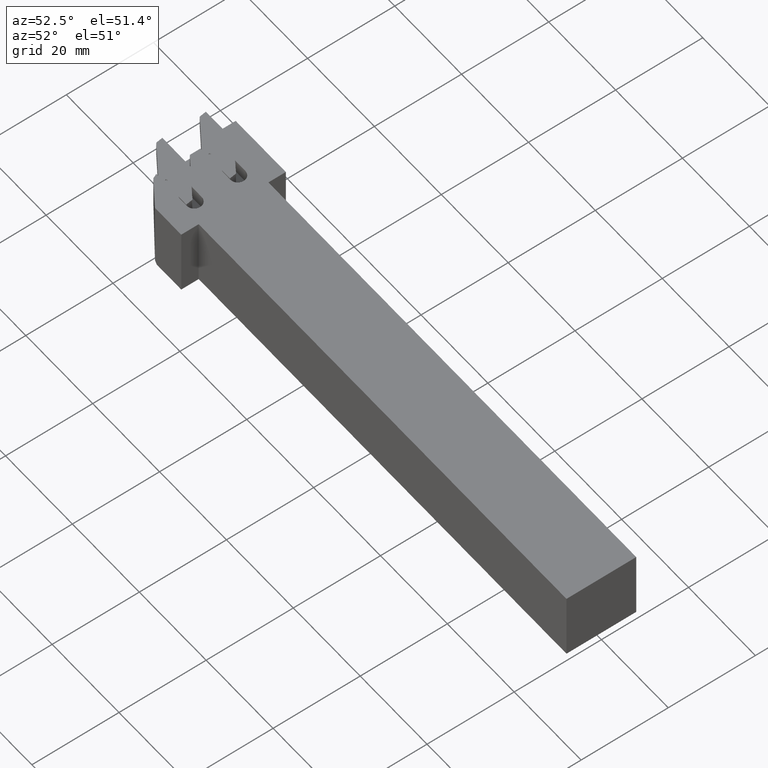
[diagram: clean part render]
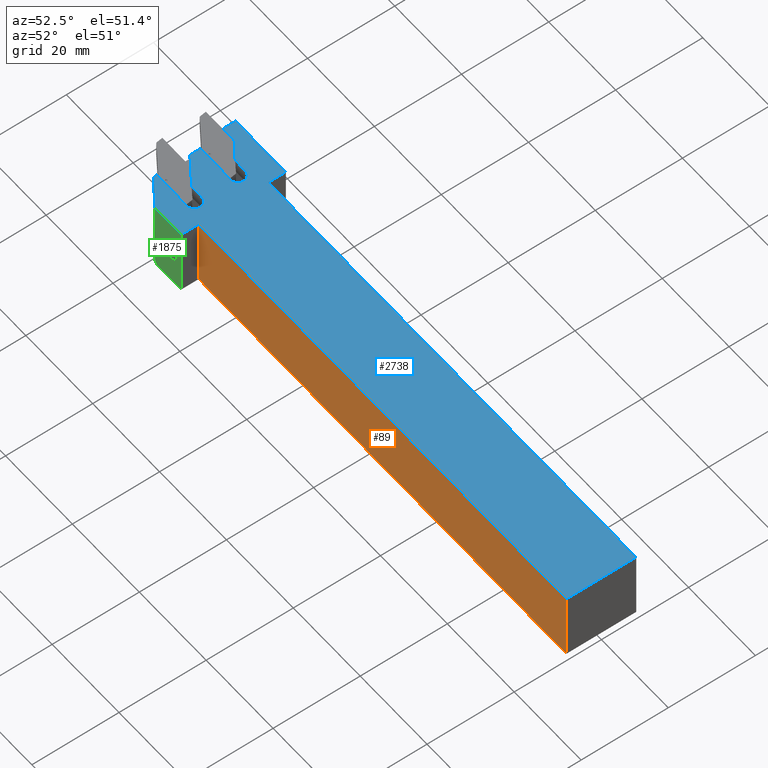
[diagram: same view with three faces highlighted in distinct colors, each labeled with its STEP entity id]
A machine part, auxiliary view with three faces highlighted in distinct colors.
Their STEP definitions:

[orange] entity #89 — the highlighted planar face has unit normal (0, -1, 0).
#89 = ADVANCED_FACE ( 'NONE', ( #137 ), #1710, .T. ) ;
#127 = CARTESIAN_POINT ( 'NONE',  ( -110.0000000000000000, -8.000000000000010700, 0.0000000000000000000 ) ) ;
#137 = FACE_OUTER_BOUND ( 'NONE', #1976, .T. ) ;
#159 = VECTOR ( 'NONE', #800, 1000.000000000000000 ) ;
#325 = AXIS2_PLACEMENT_3D ( 'NONE', #337, #1135, #2499 ) ;
#337 = CARTESIAN_POINT ( 'NONE',  ( -110.0000000000000000, -8.000000000000010700, -16.00000000000000000 ) ) ;
#409 = CARTESIAN_POINT ( 'NONE',  ( 0.0000000000000000000, -8.000000000000010700, -16.00000000000000000 ) ) ;
#461 = LINE ( 'NONE', #409, #627 ) ;
#497 = CARTESIAN_POINT ( 'NONE',  ( 0.0000000000000000000, -8.000000000000010700, -16.00000000000000000 ) ) ;
#512 = DIRECTION ( 'NONE',  ( 0.0000000000000000000, 0.0000000000000000000, 1.000000000000000000 ) ) ;
#517 = EDGE_CURVE ( 'NONE', #1944, #1025, #1358, .T. ) ;
#627 = VECTOR ( 'NONE', #512, 1000.000000000000000 ) ;
#679 = EDGE_CURVE ( 'NONE', #1774, #1944, #1722, .T. ) ;
#681 = ORIENTED_EDGE ( 'NONE', *, *, #3012, .T. ) ;
#758 = DIRECTION ( 'NONE',  ( 0.0000000000000000000, 0.0000000000000000000, 1.000000000000000000 ) ) ;
#800 = DIRECTION ( 'NONE',  ( 1.000000000000000000, 0.0000000000000000000, 0.0000000000000000000 ) ) ;
#1025 = VERTEX_POINT ( 'NONE', #2535 ) ;
#1135 = DIRECTION ( 'NONE',  ( 0.0000000000000000000, -1.000000000000000000, 0.0000000000000000000 ) ) ;
#1319 = ORIENTED_EDGE ( 'NONE', *, *, #2174, .T. ) ;
#1358 = LINE ( 'NONE', #1892, #3169 ) ;
#1485 = VERTEX_POINT ( 'NONE', #497 ) ;
#1621 = DIRECTION ( 'NONE',  ( 1.000000000000000000, 0.0000000000000000000, 0.0000000000000000000 ) ) ;
#1710 = PLANE ( 'NONE',  #325 ) ;
#1722 = LINE ( 'NONE', #2104, #1849 ) ;
#1774 = VERTEX_POINT ( 'NONE', #2778 ) ;
#1849 = VECTOR ( 'NONE', #758, 1000.000000000000000 ) ;
#1854 = ORIENTED_EDGE ( 'NONE', *, *, #679, .F. ) ;
#1892 = CARTESIAN_POINT ( 'NONE',  ( -110.0000000000000000, -8.000000000000010700, 0.0000000000000000000 ) ) ;
#1944 = VERTEX_POINT ( 'NONE', #127 ) ;
#1976 = EDGE_LOOP ( 'NONE', ( #1979, #1854, #1319, #681 ) ) ;
#1979 = ORIENTED_EDGE ( 'NONE', *, *, #517, .F. ) ;
#2104 = CARTESIAN_POINT ( 'NONE',  ( -110.0000000000000000, -8.000000000000010700, -16.00000000000000000 ) ) ;
#2174 = EDGE_CURVE ( 'NONE', #1774, #1485, #2994, .T. ) ;
#2499 = DIRECTION ( 'NONE',  ( 0.0000000000000000000, -0.0000000000000000000, -1.000000000000000000 ) ) ;
#2535 = CARTESIAN_POINT ( 'NONE',  ( 0.0000000000000000000, -8.000000000000010700, 0.0000000000000000000 ) ) ;
#2778 = CARTESIAN_POINT ( 'NONE',  ( -110.0000000000000000, -8.000000000000010700, -16.00000000000000000 ) ) ;
#2994 = LINE ( 'NONE', #3139, #159 ) ;
#3012 = EDGE_CURVE ( 'NONE', #1485, #1025, #461, .T. ) ;
#3139 = CARTESIAN_POINT ( 'NONE',  ( -110.0000000000000000, -8.000000000000010700, -16.00000000000000000 ) ) ;
#3169 = VECTOR ( 'NONE', #1621, 1000.000000000000000 ) ;

[blue] entity #2738 — the highlighted planar face has unit normal (-0, 0, 1).
#7 = EDGE_CURVE ( 'NONE', #2215, #1016, #1498, .T. ) ;
#12 = AXIS2_PLACEMENT_3D ( 'NONE', #2981, #1157, #2742 ) ;
#13 = VECTOR ( 'NONE', #3166, 1000.000000000000000 ) ;
#24 = CIRCLE ( 'NONE', #1629, 1.549999999999995800 ) ;
#38 = CARTESIAN_POINT ( 'NONE',  ( -114.6999999971994600, -3.700000000000010400, 0.0000000000000000000 ) ) ;
#68 = VERTEX_POINT ( 'NONE', #2084 ) ;
#76 = DIRECTION ( 'NONE',  ( -0.0000000000000000000, -0.0000000000000000000, -1.000000000000000000 ) ) ;
#77 = EDGE_CURVE ( 'NONE', #1025, #1535, #1593, .T. ) ;
#87 = VECTOR ( 'NONE', #2008, 1000.000000000000000 ) ;
#125 = CARTESIAN_POINT ( 'NONE',  ( -112.9999999971994500, 4.599999999999989900, 0.0000000000000000000 ) ) ;
#127 = CARTESIAN_POINT ( 'NONE',  ( -110.0000000000000000, -8.000000000000010700, 0.0000000000000000000 ) ) ;
#135 = CARTESIAN_POINT ( 'NONE',  ( -117.8272428388954000, 6.390423977855493700, 0.0000000000000000000 ) ) ;
#173 = CARTESIAN_POINT ( 'NONE',  ( -114.6999999971994600, 4.599999999999989900, 0.0000000000000000000 ) ) ;
#218 = VECTOR ( 'NONE', #2511, 1000.000000000000000 ) ;
#223 = CARTESIAN_POINT ( 'NONE',  ( -114.6999999971994600, -7.100000000000011200, 0.0000000000000000000 ) ) ;
#240 = AXIS2_PLACEMENT_3D ( 'NONE', #1661, #3203, #1410 ) ;
#270 = CARTESIAN_POINT ( 'NONE',  ( -110.0000000000000000, 7.999999999999989300, 0.0000000000000000000 ) ) ;
#276 = AXIS2_PLACEMENT_3D ( 'NONE', #972, #2564, #697 ) ;
#278 = VECTOR ( 'NONE', #3153, 1000.000000000000000 ) ;
#280 = VECTOR ( 'NONE', #1619, 1000.000000000000000 ) ;
#282 = DIRECTION ( 'NONE',  ( 1.000000000000000000, 0.0000000000000000000, 0.0000000000000000000 ) ) ;
#287 = EDGE_CURVE ( 'NONE', #1654, #2802, #1394, .T. ) ;
#299 = AXIS2_PLACEMENT_3D ( 'NONE', #173, #1790, #3341 ) ;
#304 = VECTOR ( 'NONE', #2922, 1000.000000000000000 ) ;
#335 = ORIENTED_EDGE ( 'NONE', *, *, #944, .F. ) ;
#339 = CARTESIAN_POINT ( 'NONE',  ( -110.0000000000000000, -12.00000000000001600, 0.0000000000000000000 ) ) ;
#346 = EDGE_CURVE ( 'NONE', #2933, #2520, #1430, .T. ) ;
#356 = CARTESIAN_POINT ( 'NONE',  ( -121.5541036333630600, 8.999999999999976900, 0.0000000000000000000 ) ) ;
#389 = ORIENTED_EDGE ( 'NONE', *, *, #593, .F. ) ;
#395 = CIRCLE ( 'NONE', #1539, 0.5000000000000004400 ) ;
#403 = VERTEX_POINT ( 'NONE', #223 ) ;
#421 = VERTEX_POINT ( 'NONE', #1052 ) ;
#465 = VERTEX_POINT ( 'NONE', #1018 ) ;
#482 = EDGE_CURVE ( 'NONE', #1528, #2053, #2206, .T. ) ;
#489 = CARTESIAN_POINT ( 'NONE',  ( -117.3999999971994700, 2.999999999999983600, 0.0000000000000000000 ) ) ;
#505 = EDGE_CURVE ( 'NONE', #3354, #1174, #3054, .T. ) ;
#511 = DIRECTION ( 'NONE',  ( -1.000000000000000000, -1.221440724039324500E-015, 0.0000000000000000000 ) ) ;
#517 = EDGE_CURVE ( 'NONE', #1944, #1025, #1358, .T. ) ;
#528 = EDGE_CURVE ( 'NONE', #1403, #2520, #2408, .T. ) ;
#559 = LINE ( 'NONE', #1088, #304 ) ;
#577 = CARTESIAN_POINT ( 'NONE',  ( -114.6999999971994600, 6.299999999999990100, 0.0000000000000000000 ) ) ;
#579 = DIRECTION ( 'NONE',  ( -1.000000000000000000, -1.887814473440432500E-016, -0.0000000000000000000 ) ) ;
#590 = VECTOR ( 'NONE', #819, 1000.000000000000000 ) ;
#593 = EDGE_CURVE ( 'NONE', #3339, #421, #782, .T. ) ;
#632 = DIRECTION ( 'NONE',  ( -0.8191520442889914700, 0.5735764363510464900, -0.0000000000000000000 ) ) ;
#656 = CARTESIAN_POINT ( 'NONE',  ( -117.3999999971994700, -7.000000000000016900, 0.0000000000000000000 ) ) ;
#657 = DIRECTION ( 'NONE',  ( -0.8191520442889914700, 0.5735764363510464900, -0.0000000000000000000 ) ) ;
#686 = VERTEX_POINT ( 'NONE', #1047 ) ;
#697 = DIRECTION ( 'NONE',  ( 1.000000000000000000, 0.0000000000000000000, 0.0000000000000000000 ) ) ;
#704 = CARTESIAN_POINT ( 'NONE',  ( -124.0140931366430100, -7.000000000000016900, 0.0000000000000000000 ) ) ;
#721 = DIRECTION ( 'NONE',  ( 1.000000000000000000, 4.231032868236122700E-015, 0.0000000000000000000 ) ) ;
#745 = EDGE_CURVE ( 'NONE', #1110, #465, #2423, .T. ) ;
#776 = ORIENTED_EDGE ( 'NONE', *, *, #482, .F. ) ;
#781 = DIRECTION ( 'NONE',  ( 1.000000000000000000, 0.0000000000000000000, 0.0000000000000000000 ) ) ;
#782 = LINE ( 'NONE', #656, #218 ) ;
#783 = EDGE_CURVE ( 'NONE', #68, #403, #931, .T. ) ;
#795 = CARTESIAN_POINT ( 'NONE',  ( -116.8522774396943200, 2.899999999999988400, 0.0000000000000000000 ) ) ;
#796 = VECTOR ( 'NONE', #1838, 1000.000000000000000 ) ;
#799 = CARTESIAN_POINT ( 'NONE',  ( -123.4458963666390900, -7.000000000002241800, -8.673617379885617900E-015 ) ) ;
#819 = DIRECTION ( 'NONE',  ( -0.0000000000000000000, 1.000000000000000000, -0.0000000000000000000 ) ) ;
#831 = DIRECTION ( 'NONE',  ( -1.000000000000000000, 3.656516035093716500E-014, 0.0000000000000000000 ) ) ;
#859 = VERTEX_POINT ( 'NONE', #577 ) ;
#880 = LINE ( 'NONE', #1720, #1437 ) ;
#882 = CARTESIAN_POINT ( 'NONE',  ( -117.5404546207198700, -3.700000000000013900, 0.0000000000000000000 ) ) ;
#891 = CARTESIAN_POINT ( 'NONE',  ( -117.3999999971994700, -7.000000000000016900, 0.0000000000000000000 ) ) ;
#930 = EDGE_CURVE ( 'NONE', #2982, #421, #2297, .T. ) ;
#931 = LINE ( 'NONE', #2134, #13 ) ;
#944 = EDGE_CURVE ( 'NONE', #2682, #1234, #1548, .T. ) ;
#972 = CARTESIAN_POINT ( 'NONE',  ( -114.6999999971994600, -5.400000000000011000, 0.0000000000000000000 ) ) ;
#976 = VERTEX_POINT ( 'NONE', #1308 ) ;
#1016 = VERTEX_POINT ( 'NONE', #3357 ) ;
#1018 = CARTESIAN_POINT ( 'NONE',  ( -110.0000000000000000, 11.99999999999998800, 0.0000000000000000000 ) ) ;
#1025 = VERTEX_POINT ( 'NONE', #2535 ) ;
#1046 = VECTOR ( 'NONE', #2504, 1000.000000000000000 ) ;
#1047 = CARTESIAN_POINT ( 'NONE',  ( -125.0000000000000000, 11.99999999999998400, 0.0000000000000000000 ) ) ;
#1052 = CARTESIAN_POINT ( 'NONE',  ( -123.4458963666390900, -7.000000000002241800, -8.673617379885617900E-015 ) ) ;
#1064 = CARTESIAN_POINT ( 'NONE',  ( -116.8522774396943200, -5.550000000000012300, 0.0000000000000000000 ) ) ;
#1088 = CARTESIAN_POINT ( 'NONE',  ( -125.0000000000000000, 11.99999999999998400, 0.0000000000000000000 ) ) ;
#1090 = LINE ( 'NONE', #2813, #1876 ) ;
#1110 = VERTEX_POINT ( 'NONE', #2296 ) ;
#1118 = VERTEX_POINT ( 'NONE', #135 ) ;
#1157 = DIRECTION ( 'NONE',  ( -0.0000000000000000000, 0.0000000000000000000, 1.000000000000000000 ) ) ;
#1165 = EDGE_CURVE ( 'NONE', #3339, #1958, #1626, .T. ) ;
#1174 = VERTEX_POINT ( 'NONE', #3094 ) ;
#1183 = LINE ( 'NONE', #356, #2295 ) ;
#1194 = EDGE_CURVE ( 'NONE', #3220, #976, #1090, .T. ) ;
#1221 = CARTESIAN_POINT ( 'NONE',  ( -123.5600000000000300, -7.999999992000940800, 0.0000000000000000000 ) ) ;
#1232 = AXIS2_PLACEMENT_3D ( 'NONE', #3156, #1353, #2909 ) ;
#1234 = VERTEX_POINT ( 'NONE', #1724 ) ;
#1248 = CARTESIAN_POINT ( 'NONE',  ( -121.5541036333636700, -1.000000000002040100, -8.673617379885617900E-015 ) ) ;
#1256 = ORIENTED_EDGE ( 'NONE', *, *, #1194, .F. ) ;
#1290 = EDGE_CURVE ( 'NONE', #1174, #1528, #3037, .T. ) ;
#1308 = CARTESIAN_POINT ( 'NONE',  ( -123.8000000000000100, 0.5725935659569743000, 0.0000000000000000000 ) ) ;
#1311 = VECTOR ( 'NONE', #1964, 1000.000000000000000 ) ;
#1317 = EDGE_CURVE ( 'NONE', #686, #2802, #2102, .T. ) ;
#1338 = DIRECTION ( 'NONE',  ( 1.000000000000000000, 4.029971791104145300E-016, 0.0000000000000000000 ) ) ;
#1353 = DIRECTION ( 'NONE',  ( 0.0000000000000000000, 0.0000000000000000000, 1.000000000000000000 ) ) ;
#1358 = LINE ( 'NONE', #1892, #3169 ) ;
#1376 = DIRECTION ( 'NONE',  ( 0.8191520442889909100, -0.5735764363510473800, 0.0000000000000000000 ) ) ;
#1377 = EDGE_CURVE ( 'NONE', #3352, #859, #1446, .T. ) ;
#1385 = ORIENTED_EDGE ( 'NONE', *, *, #287, .F. ) ;
#1394 = LINE ( 'NONE', #1798, #1827 ) ;
#1401 = CARTESIAN_POINT ( 'NONE',  ( -125.0000000000000000, 8.999999999999976900, 0.0000000000000000000 ) ) ;
#1403 = VERTEX_POINT ( 'NONE', #2600 ) ;
#1410 = DIRECTION ( 'NONE',  ( 1.000000000000000000, 0.0000000000000000000, 0.0000000000000000000 ) ) ;
#1430 = LINE ( 'NONE', #489, #1311 ) ;
#1437 = VECTOR ( 'NONE', #511, 1000.000000000000000 ) ;
#1446 = CIRCLE ( 'NONE', #299, 1.700000000000007100 ) ;
#1449 = CARTESIAN_POINT ( 'NONE',  ( -123.8000000000000100, 2.999999999999983600, 0.0000000000000000000 ) ) ;
#1486 = VECTOR ( 'NONE', #2448, 1000.000000000000000 ) ;
#1487 = EDGE_CURVE ( 'NONE', #2308, #1118, #395, .T. ) ;
#1498 = LINE ( 'NONE', #1614, #1046 ) ;
#1528 = VERTEX_POINT ( 'NONE', #882 ) ;
#1535 = VERTEX_POINT ( 'NONE', #2992 ) ;
#1539 = AXIS2_PLACEMENT_3D ( 'NONE', #1975, #76, #1708 ) ;
#1546 = CARTESIAN_POINT ( 'NONE',  ( -110.0000000000000000, 11.99999999999998800, 0.0000000000000000000 ) ) ;
#1548 = LINE ( 'NONE', #3405, #3249 ) ;
#1577 = ORIENTED_EDGE ( 'NONE', *, *, #1290, .F. ) ;
#1593 = LINE ( 'NONE', #2098, #87 ) ;
#1614 = CARTESIAN_POINT ( 'NONE',  ( -125.0000000000000000, -12.00000000000001600, 0.0000000000000000000 ) ) ;
#1619 = DIRECTION ( 'NONE',  ( -1.000000000000000000, -0.0000000000000000000, -0.0000000000000000000 ) ) ;
#1621 = DIRECTION ( 'NONE',  ( 1.000000000000000000, 0.0000000000000000000, 0.0000000000000000000 ) ) ;
#1622 = CARTESIAN_POINT ( 'NONE',  ( -112.9999999971994500, -5.400000000000011000, 0.0000000000000000000 ) ) ;
#1623 = CARTESIAN_POINT ( 'NONE',  ( -44.40876602472567900, -63.42229068008872900, 0.0000000000000000000 ) ) ;
#1626 = CIRCLE ( 'NONE', #3241, 4.099999999999992500 ) ;
#1629 = AXIS2_PLACEMENT_3D ( 'NONE', #1064, #2646, #781 ) ;
#1640 = CARTESIAN_POINT ( 'NONE',  ( -123.4458963666392700, 2.999999999997756900, -8.673617379883341300E-015 ) ) ;
#1654 = VERTEX_POINT ( 'NONE', #2963 ) ;
#1661 = CARTESIAN_POINT ( 'NONE',  ( -114.6999999971994600, 4.599999999999989900, 0.0000000000000000000 ) ) ;
#1662 = EDGE_CURVE ( 'NONE', #1403, #2682, #2439, .T. ) ;
#1672 = DIRECTION ( 'NONE',  ( -1.000000000000000000, -1.221440724039324500E-015, 0.0000000000000000000 ) ) ;
#1687 = ORIENTED_EDGE ( 'NONE', *, *, #1694, .F. ) ;
#1694 = EDGE_CURVE ( 'NONE', #2982, #68, #24, .T. ) ;
#1708 = DIRECTION ( 'NONE',  ( 1.000000000000000000, 0.0000000000000000000, 0.0000000000000000000 ) ) ;
#1720 = CARTESIAN_POINT ( 'NONE',  ( -114.6999999971994600, 6.299999999999990100, 0.0000000000000000000 ) ) ;
#1721 = EDGE_CURVE ( 'NONE', #859, #2308, #880, .T. ) ;
#1723 = LINE ( 'NONE', #270, #280 ) ;
#1724 = CARTESIAN_POINT ( 'NONE',  ( -114.6999999971994600, 2.899999999999989300, 0.0000000000000000000 ) ) ;
#1790 = DIRECTION ( 'NONE',  ( 0.0000000000000000000, 0.0000000000000000000, 1.000000000000000000 ) ) ;
#1798 = CARTESIAN_POINT ( 'NONE',  ( -125.0000000000000000, 8.999999999999976900, 0.0000000000000000000 ) ) ;
#1827 = VECTOR ( 'NONE', #579, 1000.000000000000000 ) ;
#1838 = DIRECTION ( 'NONE',  ( 0.0000000000000000000, 1.000000000000000000, 0.0000000000000000000 ) ) ;
#1847 = LINE ( 'NONE', #2253, #2549 ) ;
#1876 = VECTOR ( 'NONE', #2426, 999.9999999999998900 ) ;
#1879 = EDGE_CURVE ( 'NONE', #403, #3354, #2100, .T. ) ;
#1892 = CARTESIAN_POINT ( 'NONE',  ( -110.0000000000000000, -8.000000000000010700, 0.0000000000000000000 ) ) ;
#1929 = ORIENTED_EDGE ( 'NONE', *, *, #505, .F. ) ;
#1944 = VERTEX_POINT ( 'NONE', #127 ) ;
#1958 = VERTEX_POINT ( 'NONE', #1221 ) ;
#1964 = DIRECTION ( 'NONE',  ( 1.000000000000000000, -0.0000000000000000000, -0.0000000000000000000 ) ) ;
#1975 = CARTESIAN_POINT ( 'NONE',  ( -117.5404546207198700, 6.799999999999989200, 0.0000000000000000000 ) ) ;
#2004 = CIRCLE ( 'NONE', #240, 1.700000000000007100 ) ;
#2008 = DIRECTION ( 'NONE',  ( -2.659779766898156400E-017, 1.000000000000000000, -0.0000000000000000000 ) ) ;
#2016 = ORIENTED_EDGE ( 'NONE', *, *, #1487, .F. ) ;
#2023 = ORIENTED_EDGE ( 'NONE', *, *, #1377, .F. ) ;
#2053 = VERTEX_POINT ( 'NONE', #2721 ) ;
#2084 = CARTESIAN_POINT ( 'NONE',  ( -116.8522774396943200, -7.100000000000012100, 0.0000000000000000000 ) ) ;
#2091 = CARTESIAN_POINT ( 'NONE',  ( -123.8000000000000100, 0.5725935659569743000, 0.0000000000000000000 ) ) ;
#2098 = CARTESIAN_POINT ( 'NONE',  ( -4.255647627037050200E-016, 7.999999999999989300, 0.0000000000000000000 ) ) ;
#2100 = CIRCLE ( 'NONE', #276, 1.700000000000007100 ) ;
#2102 = LINE ( 'NONE', #2712, #1486 ) ;
#2122 = EDGE_CURVE ( 'NONE', #1958, #2215, #2891, .T. ) ;
#2134 = CARTESIAN_POINT ( 'NONE',  ( -116.8522774396943200, -7.100000000000012100, 0.0000000000000000000 ) ) ;
#2135 = EDGE_CURVE ( 'NONE', #465, #686, #559, .T. ) ;
#2199 = EDGE_LOOP ( 'NONE', ( #2237, #1256, #2352, #776, #1577, #1929, #2355, #2642, #1687, #2428, #389, #2655, #2771, #2951, #2388, #2330, #2984, #2901, #3046, #3106, #2676, #1385, #2560, #2016, #2385, #2023, #2304, #335, #3282, #3102, #3186 ) ) ;
#2206 = CIRCLE ( 'NONE', #2648, 0.5000000000000004400 ) ;
#2215 = VERTEX_POINT ( 'NONE', #2375 ) ;
#2237 = ORIENTED_EDGE ( 'NONE', *, *, #2515, .F. ) ;
#2247 = EDGE_CURVE ( 'NONE', #1016, #1944, #3424, .T. ) ;
#2248 = VECTOR ( 'NONE', #831, 1000.000000000000000 ) ;
#2253 = CARTESIAN_POINT ( 'NONE',  ( -121.5541036333630600, -1.000000000000022900, 0.0000000000000000000 ) ) ;
#2284 = DIRECTION ( 'NONE',  ( 0.0000000000000000000, 1.000000000000000000, 0.0000000000000000000 ) ) ;
#2295 = VECTOR ( 'NONE', #632, 999.9999999999998900 ) ;
#2296 = CARTESIAN_POINT ( 'NONE',  ( -110.0000000000000000, 7.999999999999989300, 0.0000000000000000000 ) ) ;
#2297 = LINE ( 'NONE', #799, #278 ) ;
#2299 = LINE ( 'NONE', #2091, #796 ) ;
#2304 = ORIENTED_EDGE ( 'NONE', *, *, #2779, .F. ) ;
#2308 = VERTEX_POINT ( 'NONE', #3050 ) ;
#2325 = CARTESIAN_POINT ( 'NONE',  ( -127.4865495442922900, -9.179918919816866900, 0.0000000000000000000 ) ) ;
#2330 = ORIENTED_EDGE ( 'NONE', *, *, #517, .T. ) ;
#2335 = EDGE_CURVE ( 'NONE', #2053, #3220, #1847, .T. ) ;
#2352 = ORIENTED_EDGE ( 'NONE', *, *, #2335, .F. ) ;
#2354 = VECTOR ( 'NONE', #1672, 1000.000000000000000 ) ;
#2355 = ORIENTED_EDGE ( 'NONE', *, *, #1879, .F. ) ;
#2359 = VECTOR ( 'NONE', #2284, 1000.000000000000000 ) ;
#2375 = CARTESIAN_POINT ( 'NONE',  ( -117.8474079616077600, -12.00000000000001800, 0.0000000000000000000 ) ) ;
#2385 = ORIENTED_EDGE ( 'NONE', *, *, #1721, .F. ) ;
#2388 = ORIENTED_EDGE ( 'NONE', *, *, #2247, .T. ) ;
#2408 = LINE ( 'NONE', #1640, #2248 ) ;
#2423 = LINE ( 'NONE', #1546, #590 ) ;
#2426 = DIRECTION ( 'NONE',  ( -0.8191520442889914700, 0.5735764363510464900, -0.0000000000000000000 ) ) ;
#2428 = ORIENTED_EDGE ( 'NONE', *, *, #930, .T. ) ;
#2439 = CIRCLE ( 'NONE', #1232, 1.549999999999995800 ) ;
#2448 = DIRECTION ( 'NONE',  ( 0.0000000000000000000, -1.000000000000000000, 0.0000000000000000000 ) ) ;
#2504 = DIRECTION ( 'NONE',  ( 1.000000000000000000, 0.0000000000000000000, 0.0000000000000000000 ) ) ;
#2511 = DIRECTION ( 'NONE',  ( 1.000000000000000000, -0.0000000000000000000, -0.0000000000000000000 ) ) ;
#2515 = EDGE_CURVE ( 'NONE', #976, #2933, #2299, .T. ) ;
#2520 = VERTEX_POINT ( 'NONE', #3104 ) ;
#2535 = CARTESIAN_POINT ( 'NONE',  ( 0.0000000000000000000, -8.000000000000010700, 0.0000000000000000000 ) ) ;
#2549 = VECTOR ( 'NONE', #657, 999.9999999999998900 ) ;
#2559 = VECTOR ( 'NONE', #1376, 1000.000000000000100 ) ;
#2560 = ORIENTED_EDGE ( 'NONE', *, *, #2988, .F. ) ;
#2564 = DIRECTION ( 'NONE',  ( 0.0000000000000000000, 0.0000000000000000000, 1.000000000000000000 ) ) ;
#2579 = AXIS2_PLACEMENT_3D ( 'NONE', #3181, #3434, #282 ) ;
#2592 = DIRECTION ( 'NONE',  ( 0.0000000000000000000, -0.0000000000000000000, -1.000000000000000000 ) ) ;
#2600 = CARTESIAN_POINT ( 'NONE',  ( -117.3999999971994700, 2.999999999999983600, 0.0000000000000000000 ) ) ;
#2642 = ORIENTED_EDGE ( 'NONE', *, *, #783, .F. ) ;
#2646 = DIRECTION ( 'NONE',  ( 0.0000000000000000000, 0.0000000000000000000, 1.000000000000000000 ) ) ;
#2648 = AXIS2_PLACEMENT_3D ( 'NONE', #2900, #3138, #3399 ) ;
#2655 = ORIENTED_EDGE ( 'NONE', *, *, #1165, .T. ) ;
#2676 = ORIENTED_EDGE ( 'NONE', *, *, #1317, .T. ) ;
#2677 = FACE_OUTER_BOUND ( 'NONE', #2199, .T. ) ;
#2682 = VERTEX_POINT ( 'NONE', #795 ) ;
#2712 = CARTESIAN_POINT ( 'NONE',  ( -125.0000000000000000, 11.99999999999998400, 0.0000000000000000000 ) ) ;
#2721 = CARTESIAN_POINT ( 'NONE',  ( -117.8272428388965100, -3.609576022145563700, -8.673617379885617900E-015 ) ) ;
#2738 = ADVANCED_FACE ( 'NONE', ( #2677 ), #2747, .T. ) ;
#2742 = DIRECTION ( 'NONE',  ( 1.000000000000000000, 0.0000000000000000000, 0.0000000000000000000 ) ) ;
#2747 = PLANE ( 'NONE',  #12 ) ;
#2771 = ORIENTED_EDGE ( 'NONE', *, *, #2122, .T. ) ;
#2779 = EDGE_CURVE ( 'NONE', #1234, #3352, #2004, .T. ) ;
#2802 = VERTEX_POINT ( 'NONE', #1401 ) ;
#2813 = CARTESIAN_POINT ( 'NONE',  ( -121.5541036333630600, -1.000000000000022900, 0.0000000000000000000 ) ) ;
#2862 = EDGE_CURVE ( 'NONE', #1535, #1110, #1723, .T. ) ;
#2891 = LINE ( 'NONE', #1623, #2559 ) ;
#2900 = CARTESIAN_POINT ( 'NONE',  ( -117.5404546207198700, -3.200000000000010800, 0.0000000000000000000 ) ) ;
#2901 = ORIENTED_EDGE ( 'NONE', *, *, #2862, .T. ) ;
#2909 = DIRECTION ( 'NONE',  ( 1.000000000000000000, 0.0000000000000000000, 0.0000000000000000000 ) ) ;
#2922 = DIRECTION ( 'NONE',  ( -1.000000000000000000, -2.312964634635743000E-016, -0.0000000000000000000 ) ) ;
#2933 = VERTEX_POINT ( 'NONE', #1449 ) ;
#2951 = ORIENTED_EDGE ( 'NONE', *, *, #7, .T. ) ;
#2963 = CARTESIAN_POINT ( 'NONE',  ( -121.5541036333630600, 8.999999999999976900, 0.0000000000000000000 ) ) ;
#2981 = CARTESIAN_POINT ( 'NONE',  ( 0.0000000000000000000, 0.0000000000000000000, 0.0000000000000000000 ) ) ;
#2982 = VERTEX_POINT ( 'NONE', #891 ) ;
#2984 = ORIENTED_EDGE ( 'NONE', *, *, #77, .T. ) ;
#2988 = EDGE_CURVE ( 'NONE', #1118, #1654, #1183, .T. ) ;
#2992 = CARTESIAN_POINT ( 'NONE',  ( -4.255647627037050200E-016, 7.999999999999989300, 0.0000000000000000000 ) ) ;
#3037 = LINE ( 'NONE', #38, #2354 ) ;
#3046 = ORIENTED_EDGE ( 'NONE', *, *, #745, .T. ) ;
#3050 = CARTESIAN_POINT ( 'NONE',  ( -117.5404546207198700, 6.299999999999986500, 0.0000000000000000000 ) ) ;
#3054 = CIRCLE ( 'NONE', #2579, 1.700000000000007100 ) ;
#3094 = CARTESIAN_POINT ( 'NONE',  ( -114.6999999971994600, -3.700000000000010400, 0.0000000000000000000 ) ) ;
#3102 = ORIENTED_EDGE ( 'NONE', *, *, #528, .T. ) ;
#3104 = CARTESIAN_POINT ( 'NONE',  ( -123.4458963666413200, 2.999999999999983600, 0.0000000000000000000 ) ) ;
#3106 = ORIENTED_EDGE ( 'NONE', *, *, #2135, .T. ) ;
#3138 = DIRECTION ( 'NONE',  ( -0.0000000000000000000, -0.0000000000000000000, -1.000000000000000000 ) ) ;
#3153 = DIRECTION ( 'NONE',  ( -1.000000000000000000, 3.656516035093716500E-014, 0.0000000000000000000 ) ) ;
#3156 = CARTESIAN_POINT ( 'NONE',  ( -116.8522774396943200, 4.449999999999987700, 0.0000000000000000000 ) ) ;
#3166 = DIRECTION ( 'NONE',  ( 1.000000000000000000, 4.029971791104145300E-016, 0.0000000000000000000 ) ) ;
#3169 = VECTOR ( 'NONE', #1621, 1000.000000000000000 ) ;
#3181 = CARTESIAN_POINT ( 'NONE',  ( -114.6999999971994600, -5.400000000000011000, 0.0000000000000000000 ) ) ;
#3186 = ORIENTED_EDGE ( 'NONE', *, *, #346, .F. ) ;
#3203 = DIRECTION ( 'NONE',  ( 0.0000000000000000000, 0.0000000000000000000, 1.000000000000000000 ) ) ;
#3220 = VERTEX_POINT ( 'NONE', #1248 ) ;
#3241 = AXIS2_PLACEMENT_3D ( 'NONE', #2325, #2592, #721 ) ;
#3249 = VECTOR ( 'NONE', #1338, 1000.000000000000000 ) ;
#3282 = ORIENTED_EDGE ( 'NONE', *, *, #1662, .F. ) ;
#3339 = VERTEX_POINT ( 'NONE', #704 ) ;
#3341 = DIRECTION ( 'NONE',  ( 1.000000000000000000, 0.0000000000000000000, 0.0000000000000000000 ) ) ;
#3352 = VERTEX_POINT ( 'NONE', #125 ) ;
#3354 = VERTEX_POINT ( 'NONE', #1622 ) ;
#3357 = CARTESIAN_POINT ( 'NONE',  ( -110.0000000000000000, -12.00000000000001600, 0.0000000000000000000 ) ) ;
#3399 = DIRECTION ( 'NONE',  ( 1.000000000000000000, 0.0000000000000000000, 0.0000000000000000000 ) ) ;
#3405 = CARTESIAN_POINT ( 'NONE',  ( -116.8522774396943200, 2.899999999999988400, 0.0000000000000000000 ) ) ;
#3424 = LINE ( 'NONE', #339, #2359 ) ;
#3434 = DIRECTION ( 'NONE',  ( 0.0000000000000000000, 0.0000000000000000000, 1.000000000000000000 ) ) ;

[green] entity #1875 — the highlighted planar face has unit normal (0, -1, 0).
#7 = EDGE_CURVE ( 'NONE', #2215, #1016, #1498, .T. ) ;
#117 = VERTEX_POINT ( 'NONE', #2452 ) ;
#146 = DIRECTION ( 'NONE',  ( 0.0000000000000000000, -1.000000000000000000, 0.0000000000000000000 ) ) ;
#397 = EDGE_LOOP ( 'NONE', ( #2037, #2345, #3306, #2116, #3214 ) ) ;
#541 = EDGE_CURVE ( 'NONE', #2215, #1814, #2584, .T. ) ;
#557 = AXIS2_PLACEMENT_3D ( 'NONE', #2035, #146, #1773 ) ;
#715 = PLANE ( 'NONE',  #557 ) ;
#722 = EDGE_CURVE ( 'NONE', #1299, #1350, #3329, .T. ) ;
#752 = CIRCLE ( 'NONE', #753, 1.750000000000001600 ) ;
#753 = AXIS2_PLACEMENT_3D ( 'NONE', #959, #2544, #1227 ) ;
#793 = EDGE_CURVE ( 'NONE', #3111, #117, #2944, .T. ) ;
#858 = DIRECTION ( 'NONE',  ( 0.0000000000000000000, -1.000000000000000000, 0.0000000000000000000 ) ) ;
#959 = CARTESIAN_POINT ( 'NONE',  ( -113.0000000000000000, -12.00000000000001600, -8.000000000000000000 ) ) ;
#979 = FACE_OUTER_BOUND ( 'NONE', #397, .T. ) ;
#1016 = VERTEX_POINT ( 'NONE', #3357 ) ;
#1038 = EDGE_CURVE ( 'NONE', #117, #3111, #752, .T. ) ;
#1046 = VECTOR ( 'NONE', #2504, 1000.000000000000000 ) ;
#1113 = CARTESIAN_POINT ( 'NONE',  ( -117.8474079616077300, -12.00000000000001600, -16.00000000000000000 ) ) ;
#1134 = CARTESIAN_POINT ( 'NONE',  ( -113.0000000000000000, -12.00000000000001600, -8.000000000000000000 ) ) ;
#1199 = VECTOR ( 'NONE', #2970, 1000.000000000000000 ) ;
#1227 = DIRECTION ( 'NONE',  ( 0.0000000000000000000, 0.0000000000000000000, -1.000000000000000000 ) ) ;
#1299 = VERTEX_POINT ( 'NONE', #3215 ) ;
#1340 = VECTOR ( 'NONE', #1642, 1000.000000000000100 ) ;
#1350 = VERTEX_POINT ( 'NONE', #1911 ) ;
#1498 = LINE ( 'NONE', #1614, #1046 ) ;
#1614 = CARTESIAN_POINT ( 'NONE',  ( -125.0000000000000000, -12.00000000000001600, 0.0000000000000000000 ) ) ;
#1617 = EDGE_CURVE ( 'NONE', #1350, #1016, #2225, .T. ) ;
#1642 = DIRECTION ( 'NONE',  ( 0.5735764363510477100, 0.0000000000000000000, -0.8191520442889906900 ) ) ;
#1773 = DIRECTION ( 'NONE',  ( 0.0000000000000000000, -0.0000000000000000000, -1.000000000000000000 ) ) ;
#1814 = VERTEX_POINT ( 'NONE', #2329 ) ;
#1875 = ADVANCED_FACE ( 'NONE', ( #2989, #979 ), #715, .T. ) ;
#1911 = CARTESIAN_POINT ( 'NONE',  ( -110.0000000000000000, -12.00000000000001600, -16.00000000000000000 ) ) ;
#1913 = CARTESIAN_POINT ( 'NONE',  ( -119.8520453790324300, -12.00000000000001600, -12.39536336803698900 ) ) ;
#1973 = CARTESIAN_POINT ( 'NONE',  ( -113.0000000000000000, -12.00000000000001600, -9.750000000000001800 ) ) ;
#2019 = AXIS2_PLACEMENT_3D ( 'NONE', #1134, #858, #2451 ) ;
#2035 = CARTESIAN_POINT ( 'NONE',  ( -125.0000000000000000, -12.00000000000001600, -16.00000000000000000 ) ) ;
#2037 = ORIENTED_EDGE ( 'NONE', *, *, #541, .T. ) ;
#2075 = EDGE_CURVE ( 'NONE', #1814, #1299, #2809, .T. ) ;
#2079 = VECTOR ( 'NONE', #2173, 1000.000000000000000 ) ;
#2116 = ORIENTED_EDGE ( 'NONE', *, *, #1617, .T. ) ;
#2173 = DIRECTION ( 'NONE',  ( 0.0000000000000000000, 0.0000000000000000000, -1.000000000000000000 ) ) ;
#2215 = VERTEX_POINT ( 'NONE', #2375 ) ;
#2225 = LINE ( 'NONE', #2464, #1199 ) ;
#2329 = CARTESIAN_POINT ( 'NONE',  ( -117.8474079616077100, -12.00000000000002500, -15.25828229997272500 ) ) ;
#2345 = ORIENTED_EDGE ( 'NONE', *, *, #2075, .T. ) ;
#2347 = CARTESIAN_POINT ( 'NONE',  ( -125.0000000000000000, -12.00000000000001600, -16.00000000000000000 ) ) ;
#2375 = CARTESIAN_POINT ( 'NONE',  ( -117.8474079616077600, -12.00000000000001800, 0.0000000000000000000 ) ) ;
#2451 = DIRECTION ( 'NONE',  ( 0.0000000000000000000, 0.0000000000000000000, -1.000000000000000000 ) ) ;
#2452 = CARTESIAN_POINT ( 'NONE',  ( -113.0000000000000000, -12.00000000000001600, -6.249999999999999100 ) ) ;
#2464 = CARTESIAN_POINT ( 'NONE',  ( -110.0000000000000000, -12.00000000000001600, -16.00000000000000000 ) ) ;
#2504 = DIRECTION ( 'NONE',  ( 1.000000000000000000, 0.0000000000000000000, 0.0000000000000000000 ) ) ;
#2544 = DIRECTION ( 'NONE',  ( 0.0000000000000000000, -1.000000000000000000, 0.0000000000000000000 ) ) ;
#2584 = LINE ( 'NONE', #1113, #2079 ) ;
#2606 = DIRECTION ( 'NONE',  ( 1.000000000000000000, 0.0000000000000000000, 0.0000000000000000000 ) ) ;
#2701 = EDGE_LOOP ( 'NONE', ( #3347, #3416 ) ) ;
#2791 = VECTOR ( 'NONE', #2606, 1000.000000000000000 ) ;
#2809 = LINE ( 'NONE', #1913, #1340 ) ;
#2944 = CIRCLE ( 'NONE', #2019, 1.750000000000001600 ) ;
#2970 = DIRECTION ( 'NONE',  ( 0.0000000000000000000, 0.0000000000000000000, 1.000000000000000000 ) ) ;
#2989 = FACE_BOUND ( 'NONE', #2701, .T. ) ;
#3111 = VERTEX_POINT ( 'NONE', #1973 ) ;
#3214 = ORIENTED_EDGE ( 'NONE', *, *, #7, .F. ) ;
#3215 = CARTESIAN_POINT ( 'NONE',  ( -117.3280516368250700, -12.00000000000001100, -16.00000000000000000 ) ) ;
#3306 = ORIENTED_EDGE ( 'NONE', *, *, #722, .T. ) ;
#3329 = LINE ( 'NONE', #2347, #2791 ) ;
#3347 = ORIENTED_EDGE ( 'NONE', *, *, #793, .F. ) ;
#3357 = CARTESIAN_POINT ( 'NONE',  ( -110.0000000000000000, -12.00000000000001600, 0.0000000000000000000 ) ) ;
#3416 = ORIENTED_EDGE ( 'NONE', *, *, #1038, .F. ) ;